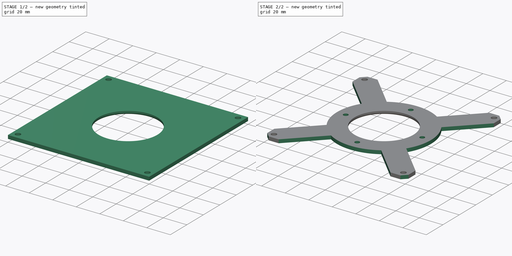
[diagram: build sequence overview — one tinted view per stage of 2, left to right]
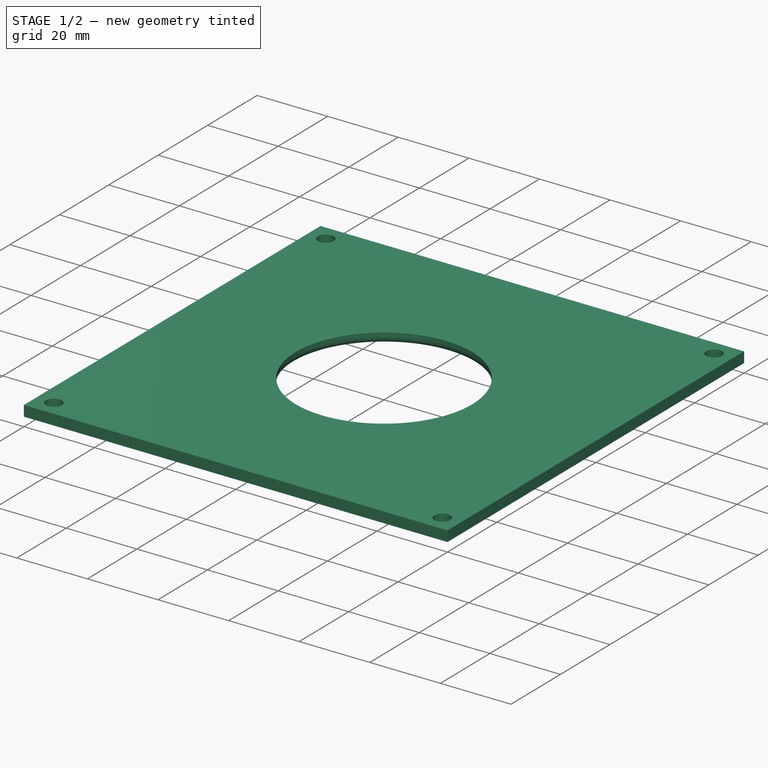
[diagram: stage 1 of 2 — iso view after this stage's code; geometry added in this stage tinted green]
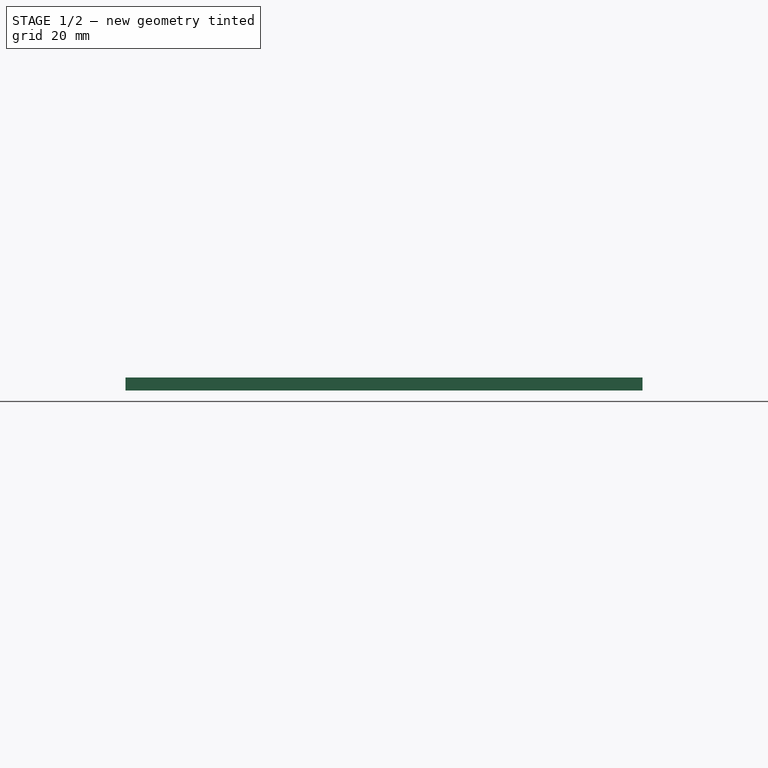
[diagram: stage 1 of 2 — front view after this stage's code; geometry added in this stage tinted green]
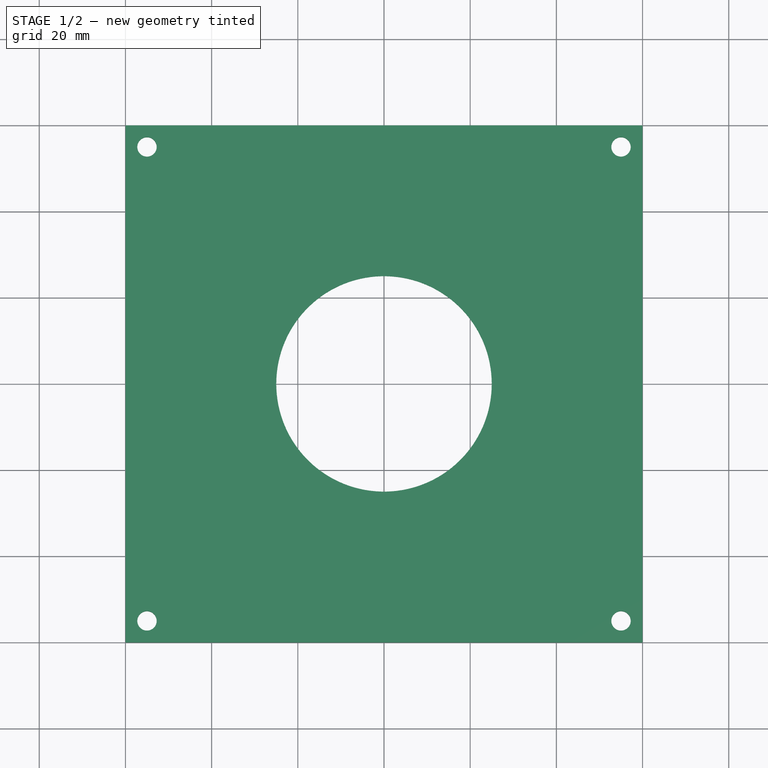
[diagram: stage 1 of 2 — top view after this stage's code; geometry added in this stage tinted green]
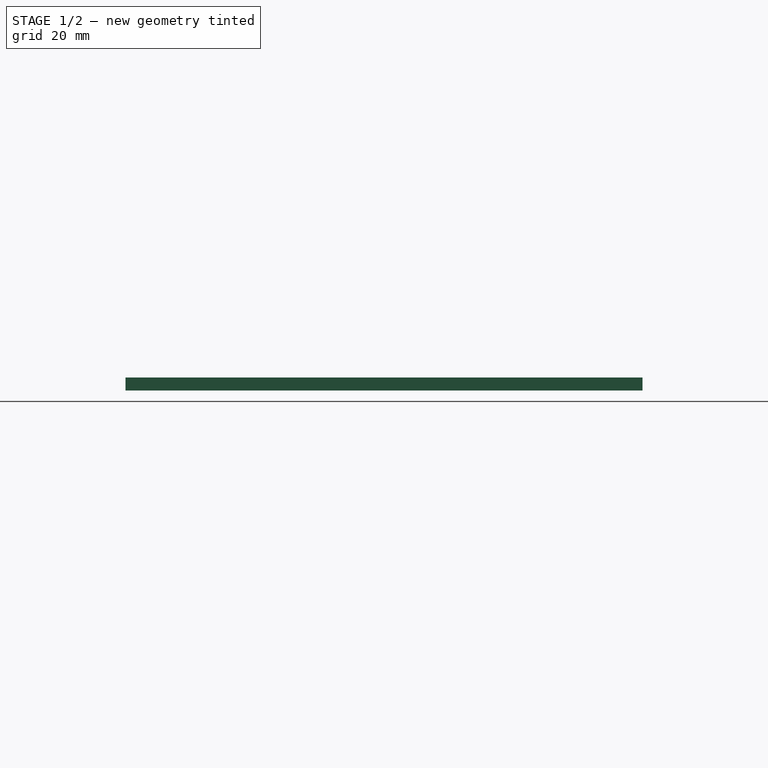
[diagram: stage 1 of 2 — right view after this stage's code; geometry added in this stage tinted green]
FCSTD DOCUMENT  (FreeCAD 2023.521R14555 (Git shallow))
Label: LED_mount_clamp
License: All rights reserved
objects: Sketcher::SketchObject×2, PartDesign::Pad×1, PartDesign::Fillet×1, PartDesign::Chamfer×1, PartDesign::Pocket×1, PartDesign::Body×1, App::Part×1
note: 17 computed .brp shape members not serialized (recipe doc carries the construction recipe); baked Part::Feature solids carry a one-line shape summary decoded from their .brp

FEATURE [Sketcher::SketchObject] Sketch
  ArcFitTolerance = 1e-06
  AttachmentSupport = -> [XY_Plane]
  ExternalBSplineMaxDegree = 5
  ExternalBSplineTolerance = 0.0001
  FullyConstrained = true
  InternalTolerance = 1e-06
  InvalidShape = false
  MakeInternals = false
  MapMode = 5
  Support = -> [XY_Plane]
  TreeRank = 14
  ValidateShape = false
  sketch-geometry (13):
    g0: LineSegment StartX=-60 StartY=-60 StartZ=0 EndX=-60 EndY=60 EndZ=0
    g1: LineSegment StartX=-60 StartY=60 StartZ=0 EndX=60 EndY=60 EndZ=0
    g2: LineSegment StartX=60 StartY=60 StartZ=0 EndX=60 EndY=-60 EndZ=0
    g3: LineSegment StartX=60 StartY=-60 StartZ=0 EndX=-60 EndY=-60 EndZ=0
    g4: LineSegment [constr] StartX=-55 StartY=-55 StartZ=0 EndX=-55 EndY=55 EndZ=0
    g5: LineSegment [constr] StartX=-55 StartY=55 StartZ=0 EndX=55 EndY=55 EndZ=0
    g6: LineSegment [constr] StartX=55 StartY=55 StartZ=0 EndX=55 EndY=-55 EndZ=0
    g7: LineSegment [constr] StartX=55 StartY=-55 StartZ=0 EndX=-55 EndY=-55 EndZ=0
    g8: Circle CenterX=-55 CenterY=55 CenterZ=0 NormalX=0 NormalY=0 NormalZ=1 AngleXU=0 Radius=2.25
    g9: Circle CenterX=55 CenterY=55 CenterZ=0 NormalX=0 NormalY=0 NormalZ=1 AngleXU=0 Radius=2.25
    g10: Circle CenterX=55 CenterY=-55 CenterZ=0 NormalX=0 NormalY=0 NormalZ=1 AngleXU=0 Radius=2.25
    g11: Circle CenterX=-55 CenterY=-55 CenterZ=0 NormalX=0 NormalY=0 NormalZ=1 AngleXU=0 Radius=2.25
    g12: Circle CenterX=0 CenterY=2e-16 CenterZ=0 NormalX=0 NormalY=0 NormalZ=1 AngleXU=0 Radius=25
  constraints (32):
    c: Coincident(g0,g1)
    c: Coincident(g1,g2)
    c: Coincident(g2,g3)
    c: Coincident(g3,g0)
    c: Horizontal(g1)
    c: Horizontal(g3)
    c: Vertical(g0)
    c: Vertical(g2)
    c: Equal(g2,g1)
    c: DistanceX(g1,g1) = 120
    c: Coincident(g4,g5)
    c: Coincident(g5,g6)
    c: Coincident(g6,g7)
    c: Coincident(g7,g4)
    c: Horizontal(g5)
    c: Horizontal(g7)
    c: Vertical(g4)
    c: Vertical(g6)
    c: Equal(g6,g5)
    c: DistanceX(g5,g5) = 110
    c: Coincident(g8,g4)
    c: Coincident(g9,g5)
    c: Coincident(g10,g6)
    c: Coincident(g11,g4)
    c: Equal(g11,g8)
    c: Equal(g8,g9)
    c: Equal(g9,g10)
    c: Diameter(g9) = 4.5
    c: Coincident(g12,g-1)
    c: Diameter(g12) = 50
    c: Symmetric(g0,g2,g12)
    c: Symmetric(g10,g8,g12)
FEATURE [PartDesign::Pad] Pad
  AddSubType = 0
  AlongSketchNormal = false
  AutoTaperInnerAngle = true
  CheckUpToFaceLimits = true
  ClaimChildren = false
  Direction = (0,0,1)
  Fit = 0
  FitJoin = 0
  InnerFit = 0
  InnerFitJoin = 0
  InvalidShape = false
  Length = 3
  Length2 = 10
  Linearize = true
  NewSolid = false
  Profile = -> Sketch
  ReferenceAxis = -> Sketch [N_Axis]
  Suppress = false
  TaperInnerAngle = 0
  TaperInnerAngleRev = 0
  TreeRank = 15
  Type = 0
  ValidateShape = true
  _ProfileBasedVersion = 1
FEATURE [PartDesign::Fillet] Fillet
  AddSubType = 0
  Base = -> Pad [Edge14]
  BaseFeature = -> Pad
  InvalidShape = false
  NewSolid = false
  Radius = 2
  SupportTransform = false
  Suppress = false
  TreeRank = 16
  UseAllEdges = false
  ValidateShape = true
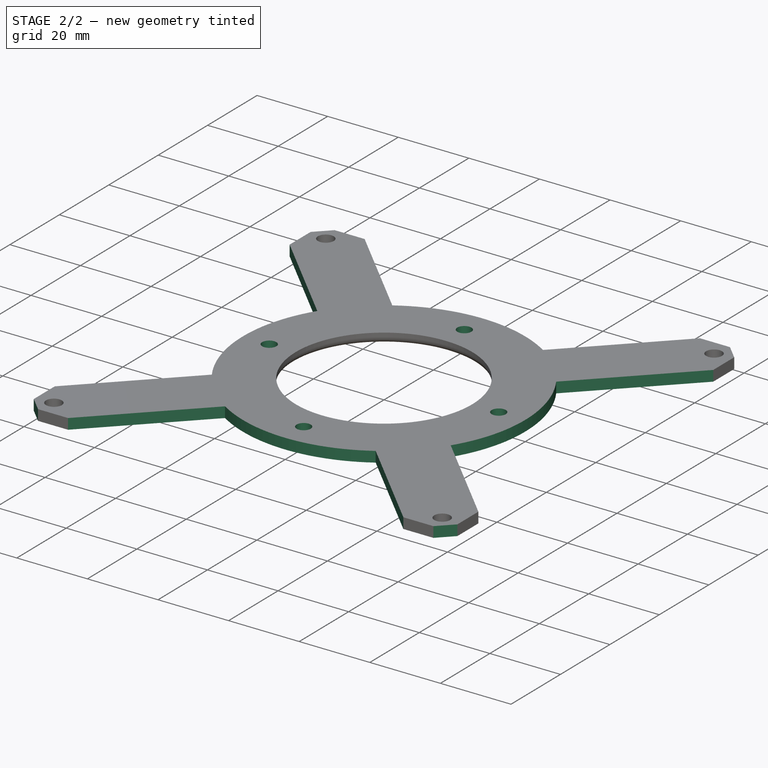
[diagram: stage 2 of 2 — iso view after this stage's code; geometry added in this stage tinted green]
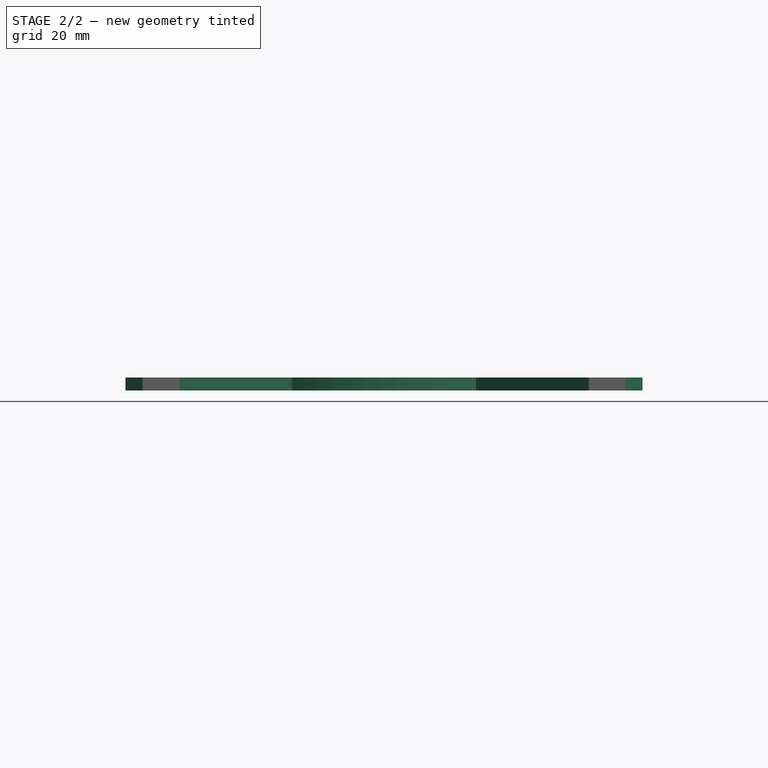
[diagram: stage 2 of 2 — front view after this stage's code; geometry added in this stage tinted green]
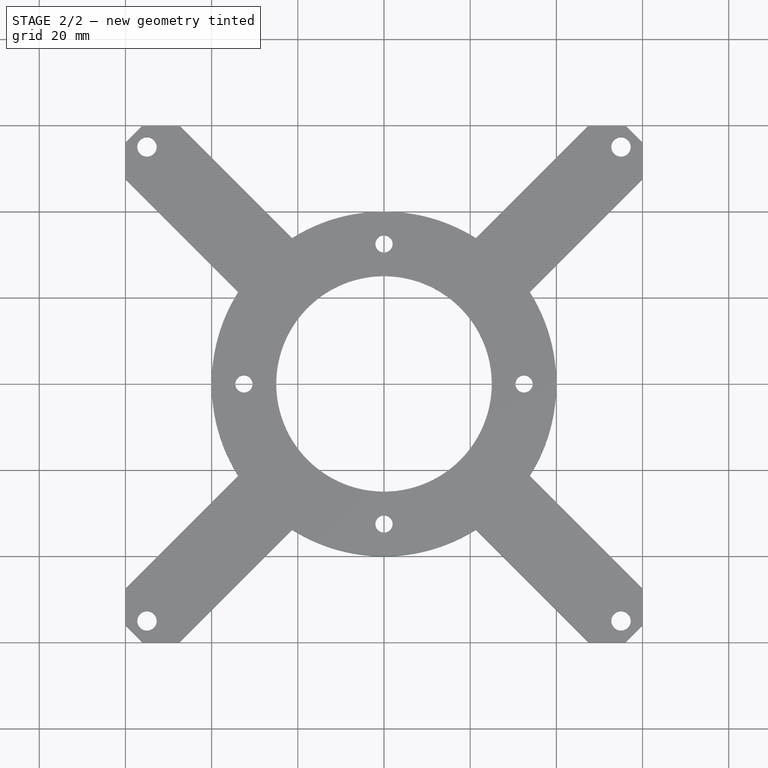
[diagram: stage 2 of 2 — top view after this stage's code; geometry added in this stage tinted green]
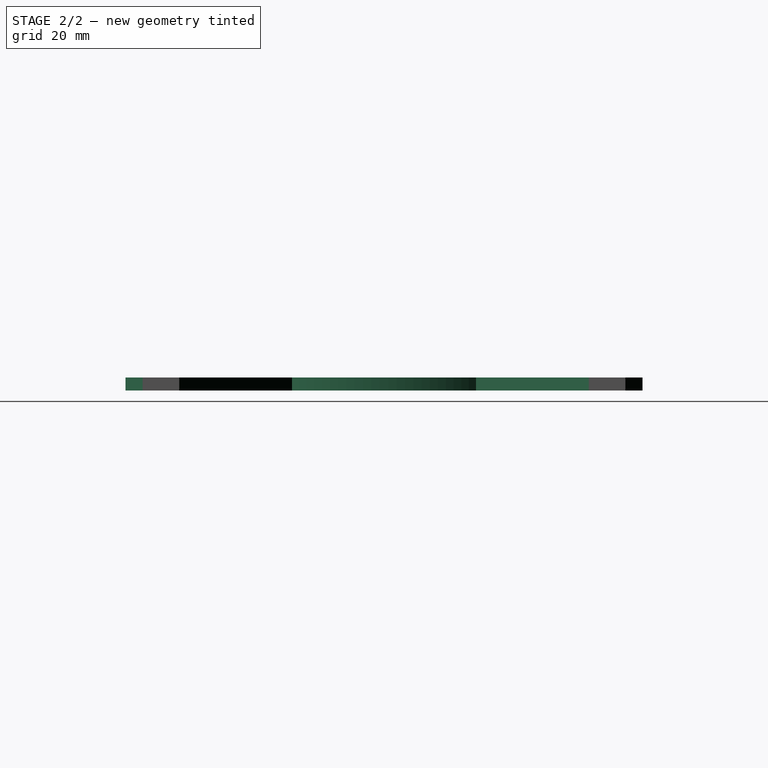
[diagram: stage 2 of 2 — right view after this stage's code; geometry added in this stage tinted green]
FEATURE [PartDesign::Chamfer] Chamfer
  AddSubType = 0
  Angle = 45
  Base = -> Fillet [Edge22,Edge25,Edge24,Edge23]
  BaseFeature = -> Fillet
  ChamferType = 0
  FlipDirection = false
  InvalidShape = false
  NewSolid = false
  Size = 4
  Size2 = 1
  SupportTransform = false
  Suppress = false
  TreeRank = 17
  UseAllEdges = false
  ValidateShape = true
FEATURE [Sketcher::SketchObject] Sketch001
  ArcFitTolerance = 1e-06
  AttachmentSupport = -> [Chamfer]
  ExternalBSplineMaxDegree = 5
  ExternalBSplineTolerance = 0.0001
  ExternalGeometry = -> [Chamfer]
  FullyConstrained = true
  InternalTolerance = 1e-06
  InvalidShape = false
  MakeInternals = false
  MapMode = 5
  Placement = pos=(0,0,3) rot=(0,0,1;0rad)
  Support = -> [Chamfer]
  TreeRank = 18
  ValidateShape = false
  sketch-geometry (21):
    g0: LineSegment StartX=-60 StartY=47.5 StartZ=0 EndX=-33.8351 EndY=21.3351 EndZ=0
    g1: LineSegment StartX=-33.8351 StartY=-21.3351 StartZ=0 EndX=-60 EndY=-47.5 EndZ=0
    g2: LineSegment StartX=-47.5 StartY=-60 StartZ=0 EndX=-21.3351 EndY=-33.8351 EndZ=0
    g3: LineSegment StartX=21.3351 StartY=-33.8351 StartZ=0 EndX=47.5 EndY=-60 EndZ=0
    g4: LineSegment StartX=60 StartY=-47.5 StartZ=0 EndX=33.8351 EndY=-21.3351 EndZ=0
    g5: LineSegment StartX=33.8351 StartY=21.3351 StartZ=0 EndX=60 EndY=47.5 EndZ=0
    g6: LineSegment StartX=47.5 StartY=60 StartZ=0 EndX=21.3351 EndY=33.8351 EndZ=0
    g7: LineSegment StartX=-21.3351 StartY=33.8351 StartZ=0 EndX=-47.5 EndY=60 EndZ=0
    g8: ArcOfCircle CenterX=0 CenterY=-3.5e-15 CenterZ=0 NormalX=0 NormalY=0 NormalZ=1 AngleXU=0 Radius=40 StartAngle=1.00821 EndAngle=2.13338
    g9: ArcOfCircle CenterX=0 CenterY=-3.5e-15 CenterZ=0 NormalX=0 NormalY=0 NormalZ=1 AngleXU=0 Radius=40 StartAngle=2.579 EndAngle=3.70418
    g10: ArcOfCircle CenterX=0 CenterY=-3.5e-15 CenterZ=0 NormalX=0 NormalY=0 NormalZ=1 AngleXU=0 Radius=40 StartAngle=4.1498 EndAngle=5.27498
    g11: ArcOfCircle CenterX=0 CenterY=-3.5e-15 CenterZ=0 NormalX=0 NormalY=0 NormalZ=1 AngleXU=0 Radius=40 StartAngle=5.7206 EndAngle=6.84577
    g12: LineSegment StartX=-60 StartY=47.5 StartZ=0 EndX=-60 EndY=-47.5 EndZ=0
    g13: LineSegment StartX=-47.5 StartY=-60 StartZ=0 EndX=47.5 EndY=-60 EndZ=0
    g14: LineSegment StartX=60 StartY=-47.5 StartZ=0 EndX=60 EndY=47.5 EndZ=0
    g15: LineSegment StartX=47.5 StartY=60 StartZ=0 EndX=-47.5 EndY=60 EndZ=0
    g16: Circle CenterX=0 CenterY=32.5 CenterZ=0 NormalX=0 NormalY=0 NormalZ=1 AngleXU=0 Radius=2
    g17: Circle CenterX=32.5 CenterY=-3.5e-15 CenterZ=0 NormalX=0 NormalY=0 NormalZ=1 AngleXU=0 Radius=2
    g18: Circle CenterX=0 CenterY=-32.5 CenterZ=0 NormalX=0 NormalY=0 NormalZ=1 AngleXU=0 Radius=2
    g19: Circle CenterX=-32.5 CenterY=-3.5e-15 CenterZ=0 NormalX=0 NormalY=0 NormalZ=1 AngleXU=0 Radius=2
    g20: Circle [constr] CenterX=0 CenterY=-3.5e-15 CenterZ=0 NormalX=0 NormalY=0 NormalZ=1 AngleXU=0 Radius=32.5
  constraints (61):
    c: Coincident(g8,g-1)
    c: Coincident(g8,g6)
    c: Coincident(g9,g8)
    c: Coincident(g9,g0)
    c: Coincident(g10,g8)
    c: Coincident(g10,g2)
    c: Coincident(g11,g8)
    c: Coincident(g11,g4)
    c: Coincident(g11,g5)
    c: Coincident(g7,g8)
    c: Coincident(g1,g9)
    c: Coincident(g3,g10)
    c: Vertical(g0,g-3)
    c: Parallel(g0,g3)
    c: Parallel(g3,g7)
    c: Parallel(g7,g4)
    c: Parallel(g5,g6)
    c: Parallel(g6,g1)
    c: Parallel(g1,g2)
    c: Symmetric(g1,g0,g-1)
    c: Coincident(g12,g0)
    c: Coincident(g12,g1)
    c: Coincident(g13,g2)
    c: Coincident(g13,g3)
    c: Coincident(g14,g4)
    c: Coincident(g14,g5)
    c: Coincident(g15,g6)
    c: Coincident(g15,g7)
    c: Perpendicular(g1,g0)
    c: Symmetric(g1,g0,g-1)
    c: Equal(g9,g8)
    c: Equal(g8,g11)
    c: Equal(g11,g10)
    c: Equal(g7,g0)
    c: Equal(g0,g4)
    c: Equal(g4,g3)
    c: Equal(g1,g2)
    c: Equal(g2,g6)
    c: Equal(g6,g5)
    c: Diameter(g8) = 80
    c: Horizontal(g15)
    c: Vertical(g14)
    c: Horizontal(g13)
    c: Horizontal(g-4,g2)
    c: Symmetric(g1,g4,g-2)
    c: Symmetric(g3,g6,g-1)
    c: DistanceX(g15,g15) = 95
    c: Equal(g19,g16)
    c: Equal(g16,g17)
    c: Equal(g17,g18)
    c: Diameter(g17) = 4
    c: Horizontal(g17,g8)
    c: Horizontal(g8,g19)
    c: Coincident(g20,g8)
    c: PointOnObject(g19,g20)
    c: PointOnObject(g17,g20)
    c: PointOnObject(g18,g20)
    c: Vertical(g18,g8)
    c: Vertical(g8,g16)
    c: Diameter(g20) = 65
    c: PointOnObject(g16,g20)
FEATURE [PartDesign::Pocket] Pocket
  AddSubType = 1
  AlongSketchNormal = false
  AutoTaperInnerAngle = true
  BaseFeature = -> Chamfer
  CheckUpToFaceLimits = true
  ClaimChildren = false
  Direction = (0,0,-1)
  Fit = 0
  FitJoin = 0
  InnerFit = 0
  InnerFitJoin = 0
  InvalidShape = false
  Length = 5
  Length2 = 10
  Linearize = true
  NewSolid = false
  Profile = -> Sketch001
  ReferenceAxis = -> Sketch001 [N_Axis]
  Suppress = false
  TaperInnerAngle = 0
  TaperInnerAngleRev = 0
  TreeRank = 19
  Type = 1
  ValidateShape = true
  _ProfileBasedVersion = 1
  _Version = 1
FEATURE [PartDesign::Body] Body
  AutoGroupSolids = false
  ClaimAllChildren = false
  ExportMode = 0
  Group = -> [Sketch,Pad,Fillet,Chamfer,Sketch001,Pocket]
  InvalidShape = false
  Origin = -> Origin001
  Tip = -> Pocket
  TreeRank = 13
  ValidateShape = false
  _ExportChildren = -> [Pad,Fillet,Chamfer,Pocket]
  _GroupVersion = 1
FEATURE [App::Part] Part
  ClaimAllChildren = false
  ExportMode = 1
  Group = -> [Body]
  Origin = -> Origin
  TreeRank = 3
  _ExportChildren = -> [Body]
  _GroupVersion = 1
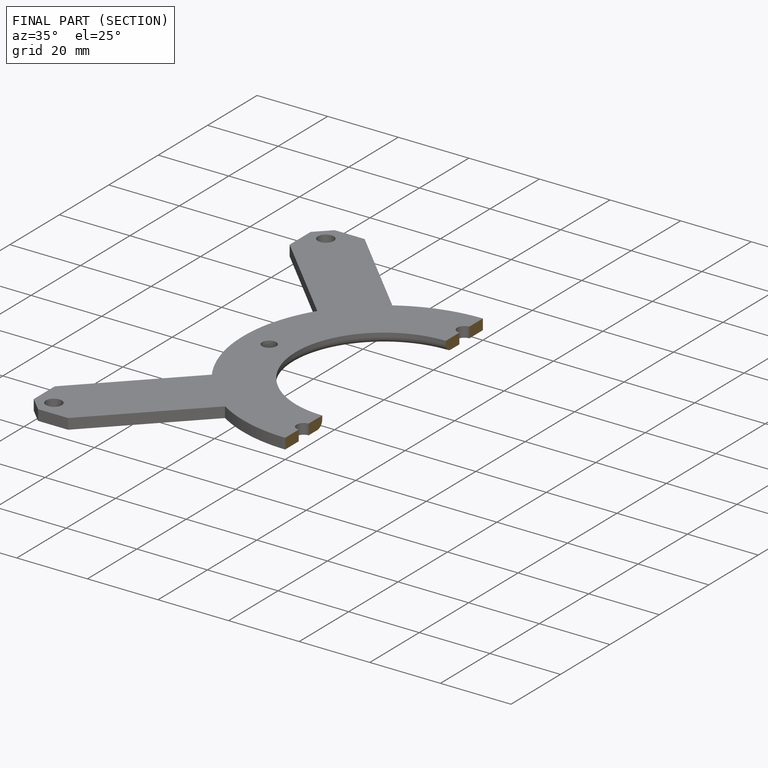
[diagram: finished part — half-section view (interior)]
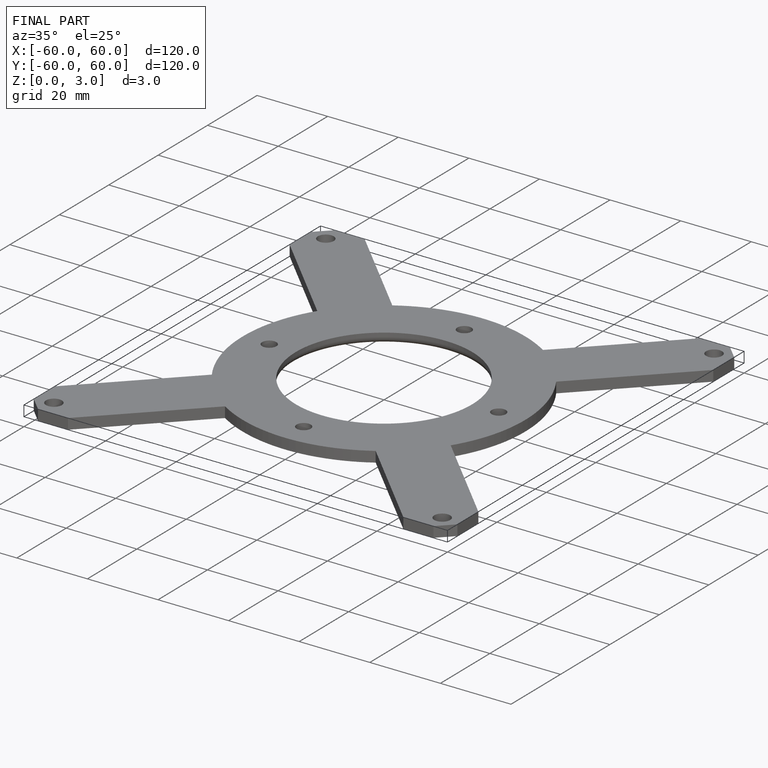
[diagram: finished part — iso view with bounding-box wireframe]
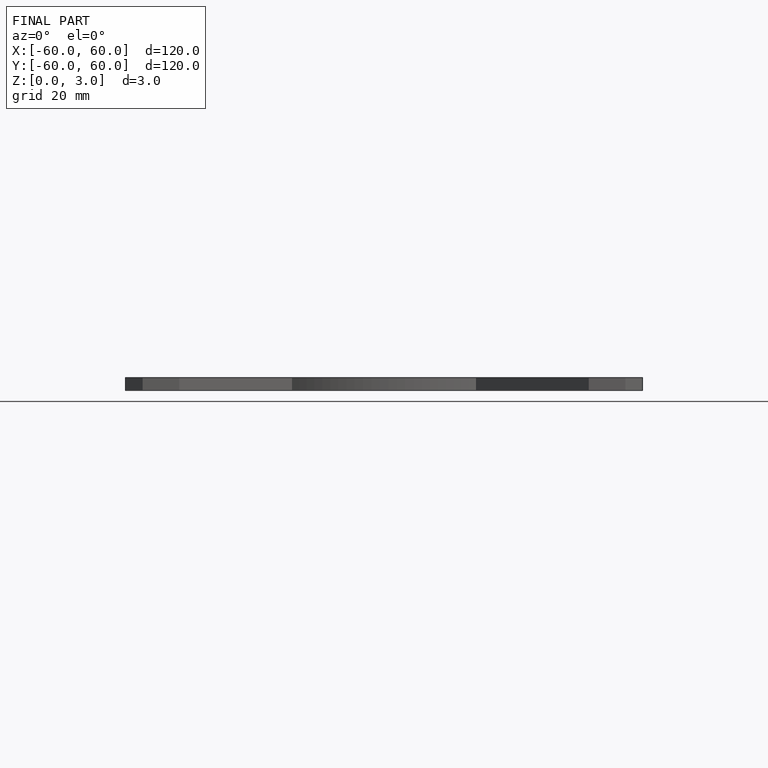
[diagram: finished part — front view with bounding-box wireframe]
